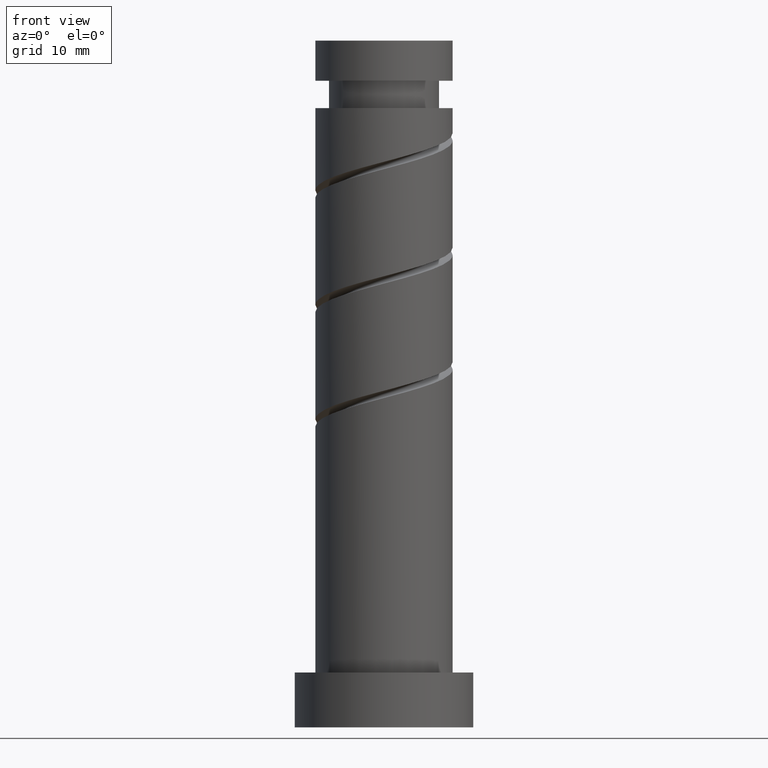
[diagram: clean part render]
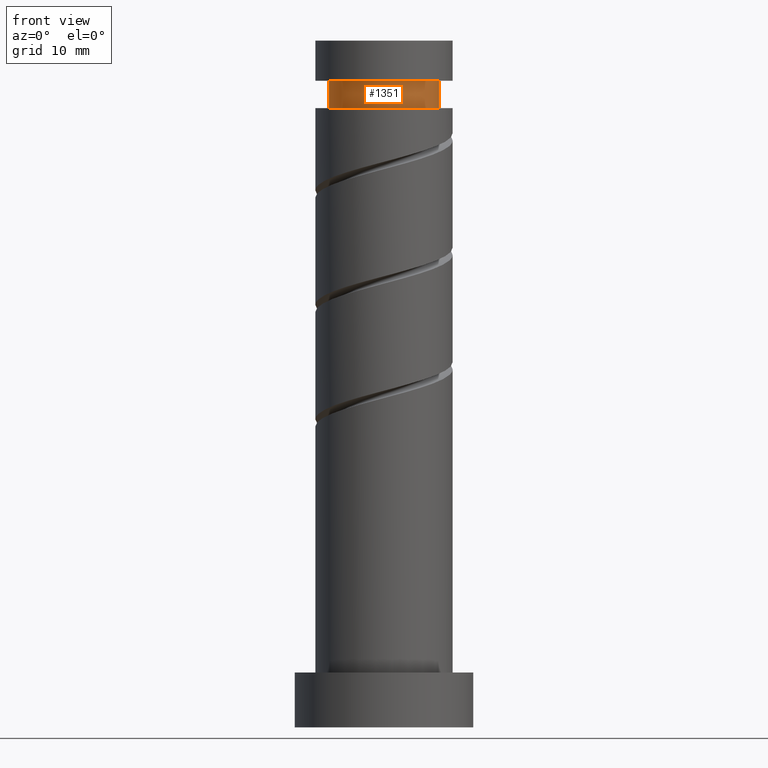
[diagram: same view with one face highlighted and labeled with its STEP entity id]
A machine part, front view. The second image highlights one B-rep face of the part: STEP entity #1351.
In plain terms, the highlighted cylindrical surface (partial cylindrical patch) has radius 8 mm, axis along (-0, -0, -1).
Its self-contained STEP definition (entity closure, byte-faithful):
#25 = AXIS2_PLACEMENT_3D ( 'NONE', #77, #532, #995 ) ;
#71 = CYLINDRICAL_SURFACE ( 'NONE', #25, 8.000000000000003553 ) ;
#77 = CARTESIAN_POINT ( 'NONE',  ( 0.000000000000000000, 0.000000000000000000, 0.000000000000000000 ) ) ;
#114 = EDGE_CURVE ( 'NONE', #980, #299, #1453, .T. ) ;
#174 = LINE ( 'NONE', #1001, #410 ) ;
#184 = FACE_OUTER_BOUND ( 'NONE', #916, .T. ) ;
#228 = CARTESIAN_POINT ( 'NONE',  ( 8.000000000000003553, 9.797174393178831574E-16, 90.16289731215820780 ) ) ;
#299 = VERTEX_POINT ( 'NONE', #1419 ) ;
#306 = DIRECTION ( 'NONE',  ( -0.000000000000000000, -0.000000000000000000, -1.000000000000000000 ) ) ;
#331 = CARTESIAN_POINT ( 'NONE',  ( 0.000000000000000000, 0.000000000000000000, 94.16289731215820780 ) ) ;
#341 = AXIS2_PLACEMENT_3D ( 'NONE', #331, #767, #1122 ) ;
#348 = CARTESIAN_POINT ( 'NONE',  ( 0.000000000000000000, 0.000000000000000000, 90.16289731215820780 ) ) ;
#375 = ORIENTED_EDGE ( 'NONE', *, *, #465, .F. ) ;
#410 = VECTOR ( 'NONE', #1245, 1000.000000000000000 ) ;
#411 = VECTOR ( 'NONE', #306, 1000.000000000000000 ) ;
#465 = EDGE_CURVE ( 'NONE', #980, #763, #174, .T. ) ;
#532 = DIRECTION ( 'NONE',  ( -0.000000000000000000, -0.000000000000000000, -1.000000000000000000 ) ) ;
#608 = CARTESIAN_POINT ( 'NONE',  ( 8.000000000000003553, 9.797174393178831574E-16, 94.16289731215820780 ) ) ;
#623 = LINE ( 'NONE', #846, #411 ) ;
#653 = ORIENTED_EDGE ( 'NONE', *, *, #114, .T. ) ;
#681 = ORIENTED_EDGE ( 'NONE', *, *, #1423, .T. ) ;
#763 = VERTEX_POINT ( 'NONE', #228 ) ;
#767 = DIRECTION ( 'NONE',  ( -0.000000000000000000, -0.000000000000000000, -1.000000000000000000 ) ) ;
#791 = AXIS2_PLACEMENT_3D ( 'NONE', #348, #1184, #833 ) ;
#833 = DIRECTION ( 'NONE',  ( -1.000000000000000000, 0.000000000000000000, 0.000000000000000000 ) ) ;
#846 = CARTESIAN_POINT ( 'NONE',  ( -8.000000000000003553, 0.000000000000000000, 0.000000000000000000 ) ) ;
#916 = EDGE_LOOP ( 'NONE', ( #375, #653, #681, #1270 ) ) ;
#980 = VERTEX_POINT ( 'NONE', #608 ) ;
#995 = DIRECTION ( 'NONE',  ( -1.000000000000000000, 0.000000000000000000, 0.000000000000000000 ) ) ;
#1001 = CARTESIAN_POINT ( 'NONE',  ( 8.000000000000003553, 9.797174393178831574E-16, 0.000000000000000000 ) ) ;
#1122 = DIRECTION ( 'NONE',  ( -1.000000000000000000, 0.000000000000000000, 0.000000000000000000 ) ) ;
#1161 = VERTEX_POINT ( 'NONE', #1210 ) ;
#1184 = DIRECTION ( 'NONE',  ( -0.000000000000000000, -0.000000000000000000, -1.000000000000000000 ) ) ;
#1210 = CARTESIAN_POINT ( 'NONE',  ( -8.000000000000003553, 0.000000000000000000, 90.16289731215820780 ) ) ;
#1241 = EDGE_CURVE ( 'NONE', #763, #1161, #1418, .T. ) ;
#1245 = DIRECTION ( 'NONE',  ( -0.000000000000000000, -0.000000000000000000, -1.000000000000000000 ) ) ;
#1270 = ORIENTED_EDGE ( 'NONE', *, *, #1241, .F. ) ;
#1351 = ADVANCED_FACE ( 'NONE', ( #184 ), #71, .T. ) ;
#1418 = CIRCLE ( 'NONE', #791, 8.000000000000003553 ) ;
#1419 = CARTESIAN_POINT ( 'NONE',  ( -8.000000000000003553, 0.000000000000000000, 94.16289731215820780 ) ) ;
#1423 = EDGE_CURVE ( 'NONE', #299, #1161, #623, .T. ) ;
#1453 = CIRCLE ( 'NONE', #341, 8.000000000000003553 ) ;